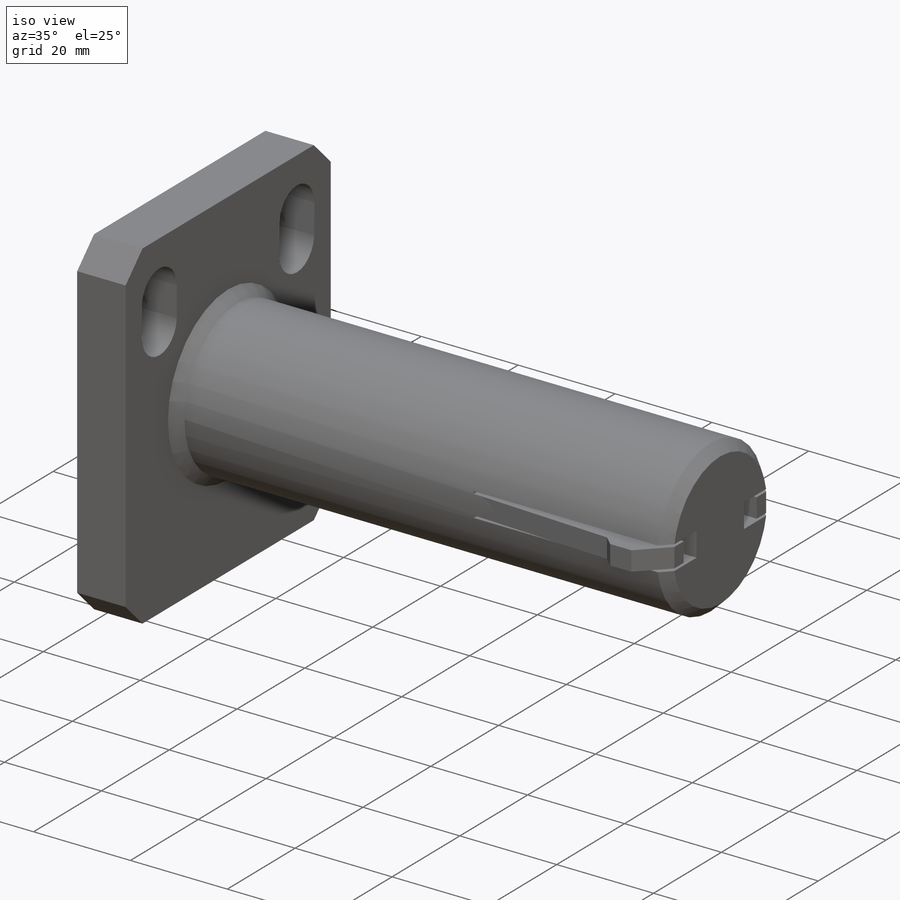
[diagram: iso view]
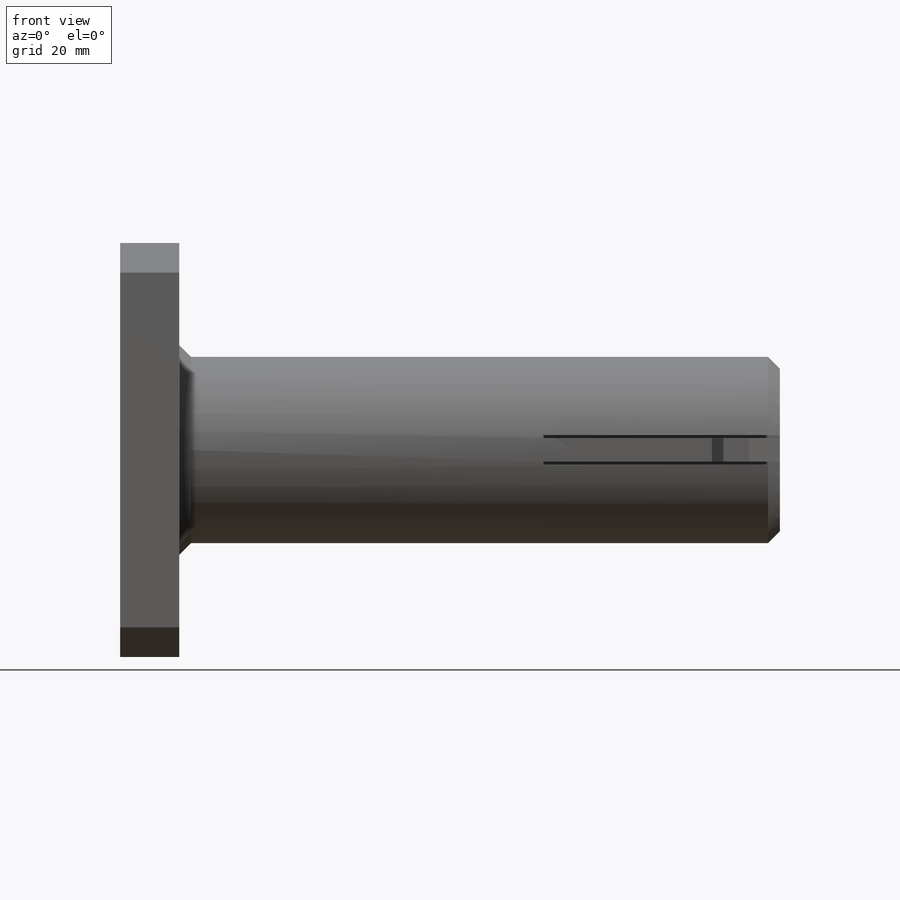
[diagram: front view]
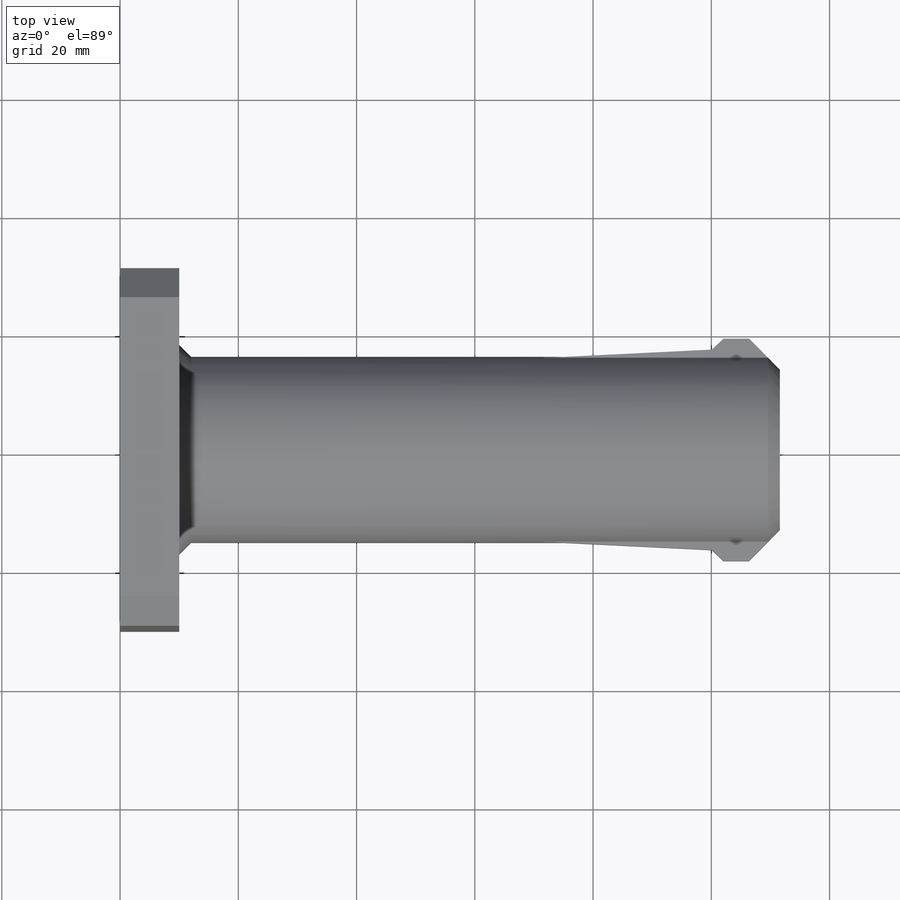
[diagram: top view]
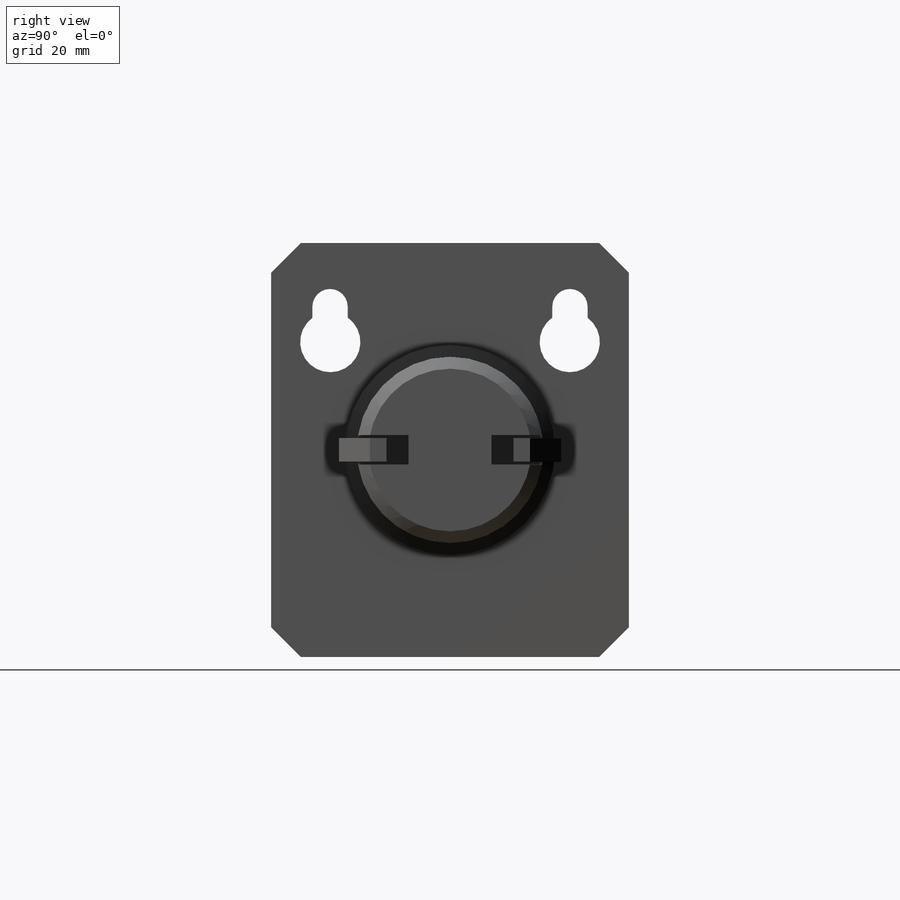
[diagram: right view]
SOLIDWORKS PART (.sldprt)
format: sldprt  version: not decoded by parser v0  size: 359,424 bytes
history: native  units: mm
features: sketch x7, extrude x4, cut_extrude x3, chamfer x3, material x1 (+16 scaffold rows collapsed)
feature tree (34):
  scaffold x16  (default folders/planes/origin — collapsed)
  material  "Material <not specified>"
  sketch  "Sketch1"  dims[D1=~21.249474mm D2=38.0mm]
  extrude  "Boss-Extrude1"  Depth=10mm
  sketch  "Sketch2"  dims[D1=31.5mm]
  extrude  "Boss-Extrude2"  Depth=101.6mm
  sketch  "Sketch3"  dims[D5=5.5mm D1=2.0mm D2=2.0mm D3=0.5mm D4=0.5mm D6=0.5mm]
  cut_extrude  "Cut-Extrude1"  Depth=40mm
  sketch  "Sketch8"  dims[D1=3.25mm]
  cut_extrude  "Cut-Extrude2"  [1 undecoded]
  chamfer  "Chamfer3"  Distance=2mm Angle=45deg
  sketch  "Sketch19"
  extrude  "Boss-Extrude9"  Depth=4mm
  sketch  "Sketch23"  dims[D1=1.5mm D2=10.0mm D3=0.5mm]
  extrude  "Boss-Extrude10"  Depth=4mm
  chamfer  "Chamfer4"  Distance=5mm Angle=45deg
  sketch  "Sketch28"
  cut_extrude  "Cut-Extrude9"  Depth=4mm
  chamfer  "Chamfer6"  Distance=2mm Angle=45deg
decode coverage: 14 of 17 modeling features carry decoded parameters
note: ~ marks probable driven/reference dimensions
note: 1 parameter value undecoded
note: suppression state not decoded; provenance and decode notes live in map.json
